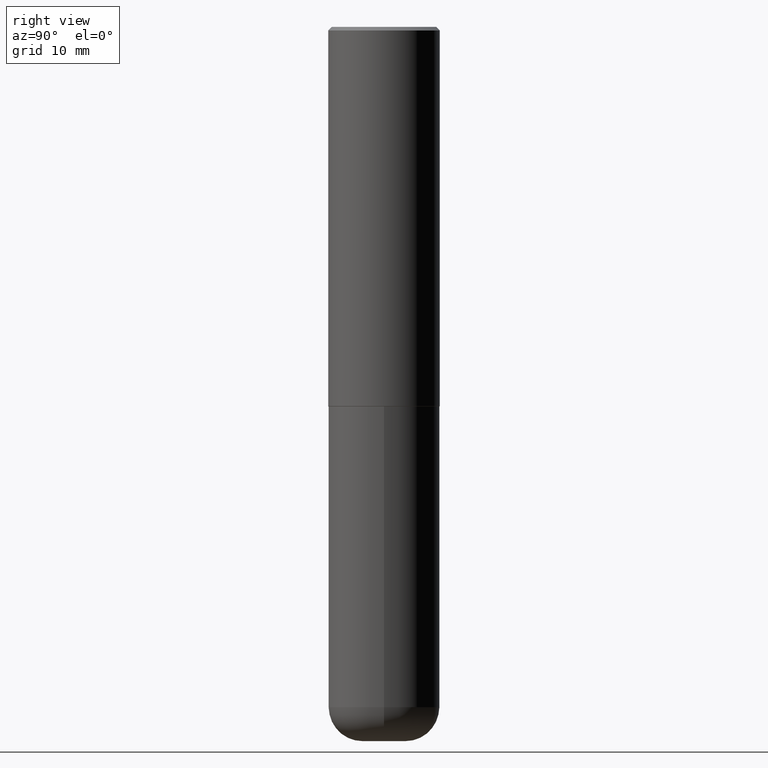
[diagram: clean part render]
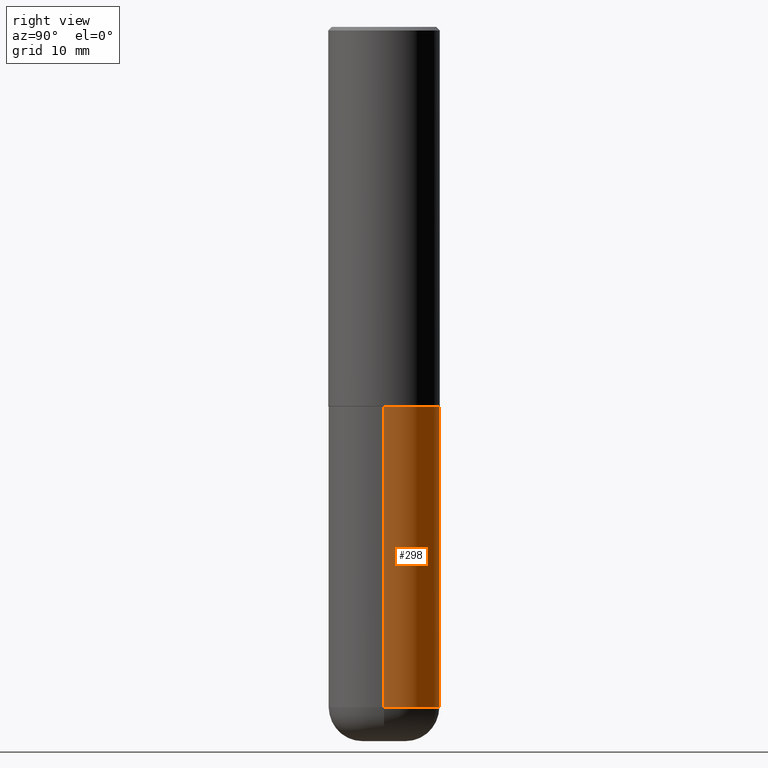
[diagram: same view with one face highlighted and labeled with its STEP entity id]
A machine part, right view. The second image highlights one B-rep face of the part: STEP entity #298.
In plain terms, the highlighted cylindrical surface (partial cylindrical patch) has radius 7.9375 mm, axis along (-0, 0, 1).
Its self-contained STEP definition (entity closure, byte-faithful):
#2 = EDGE_LOOP ( 'NONE', ( #322, #139, #11, #153 ) ) ;
#11 = ORIENTED_EDGE ( 'NONE', *, *, #13, .F. ) ;
#12 = DIRECTION ( 'NONE',  ( -2.445468806185136597E-29, 3.491481338843145583E-15, 1.000000000000000000 ) ) ;
#13 = EDGE_CURVE ( 'NONE', #172, #244, #52, .T. ) ;
#27 = CARTESIAN_POINT ( 'NONE',  ( -0.3125000000000000000, 2.220446049250313081E-15, -1.537167215704658232E-29 ) ) ;
#40 = CARTESIAN_POINT ( 'NONE',  ( 0.3125000000000000000, -9.601573681818640393E-15, -2.124999999999999556 ) ) ;
#43 = VERTEX_POINT ( 'NONE', #110 ) ;
#52 = CIRCLE ( 'NONE', #78, 0.3125000000000000000 ) ;
#62 = AXIS2_PLACEMENT_3D ( 'NONE', #109, #76, #270 ) ;
#76 = DIRECTION ( 'NONE',  ( -2.445468806185136597E-29, 3.491481338843145583E-15, 1.000000000000000000 ) ) ;
#78 = AXIS2_PLACEMENT_3D ( 'NONE', #150, #12, #333 ) ;
#88 = EDGE_CURVE ( 'NONE', #43, #304, #294, .T. ) ;
#103 = LINE ( 'NONE', #373, #219 ) ;
#109 = CARTESIAN_POINT ( 'NONE',  ( 9.317236151565370389E-29, -1.330254390099238573E-14, -3.810000000000000053 ) ) ;
#110 = CARTESIAN_POINT ( 'NONE',  ( 0.3124999999999998890, -1.548471973776934408E-14, -3.810000000000000053 ) ) ;
#120 = CYLINDRICAL_SURFACE ( 'NONE', #350, 0.3125000000000000000 ) ;
#139 = ORIENTED_EDGE ( 'NONE', *, *, #339, .T. ) ;
#150 = CARTESIAN_POINT ( 'NONE',  ( 5.196621213143414147E-29, -7.419397845041682046E-15, -2.124999999999999556 ) ) ;
#153 = ORIENTED_EDGE ( 'NONE', *, *, #177, .F. ) ;
#154 = VECTOR ( 'NONE', #408, 39.37007874015748143 ) ;
#172 = VERTEX_POINT ( 'NONE', #40 ) ;
#177 = EDGE_CURVE ( 'NONE', #43, #172, #103, .T. ) ;
#184 = CARTESIAN_POINT ( 'NONE',  ( -0.3125000000000000000, -8.140524823766720019E-15, -2.124999999999999556 ) ) ;
#219 = VECTOR ( 'NONE', #400, 39.37007874015748143 ) ;
#244 = VERTEX_POINT ( 'NONE', #184 ) ;
#249 = FACE_OUTER_BOUND ( 'NONE', #2, .T. ) ;
#270 = DIRECTION ( 'NONE',  ( 1.000000000000000000, -6.982962677686269077E-15, 0.000000000000000000 ) ) ;
#285 = CARTESIAN_POINT ( 'NONE',  ( 0.000000000000000000, 0.000000000000000000, 0.000000000000000000 ) ) ;
#286 = LINE ( 'NONE', #27, #154 ) ;
#294 = CIRCLE ( 'NONE', #62, 0.3125000000000000000 ) ;
#298 = ADVANCED_FACE ( 'NONE', ( #249 ), #120, .T. ) ;
#304 = VERTEX_POINT ( 'NONE', #375 ) ;
#318 = DIRECTION ( 'NONE',  ( 1.000000000000000000, -6.982962677686266711E-15, 4.876176775795936353E-29 ) ) ;
#322 = ORIENTED_EDGE ( 'NONE', *, *, #88, .T. ) ;
#333 = DIRECTION ( 'NONE',  ( 1.000000000000000000, -6.982962677686265133E-15, 0.000000000000000000 ) ) ;
#339 = EDGE_CURVE ( 'NONE', #304, #244, #286, .T. ) ;
#348 = DIRECTION ( 'NONE',  ( -2.445468806185136597E-29, 3.491481338843145583E-15, 1.000000000000000000 ) ) ;
#350 = AXIS2_PLACEMENT_3D ( 'NONE', #285, #348, #318 ) ;
#373 = CARTESIAN_POINT ( 'NONE',  ( 0.3125000000000000000, -2.182175836776958347E-15, 1.523805242436230075E-29 ) ) ;
#375 = CARTESIAN_POINT ( 'NONE',  ( -0.3124999999999998890, -1.108209785174207265E-14, -3.810000000000000053 ) ) ;
#400 = DIRECTION ( 'NONE',  ( -2.445468806185136877E-29, 3.491481338843145188E-15, 1.000000000000000000 ) ) ;
#408 = DIRECTION ( 'NONE',  ( -2.445468806185136877E-29, 3.491481338843145188E-15, 1.000000000000000000 ) ) ;